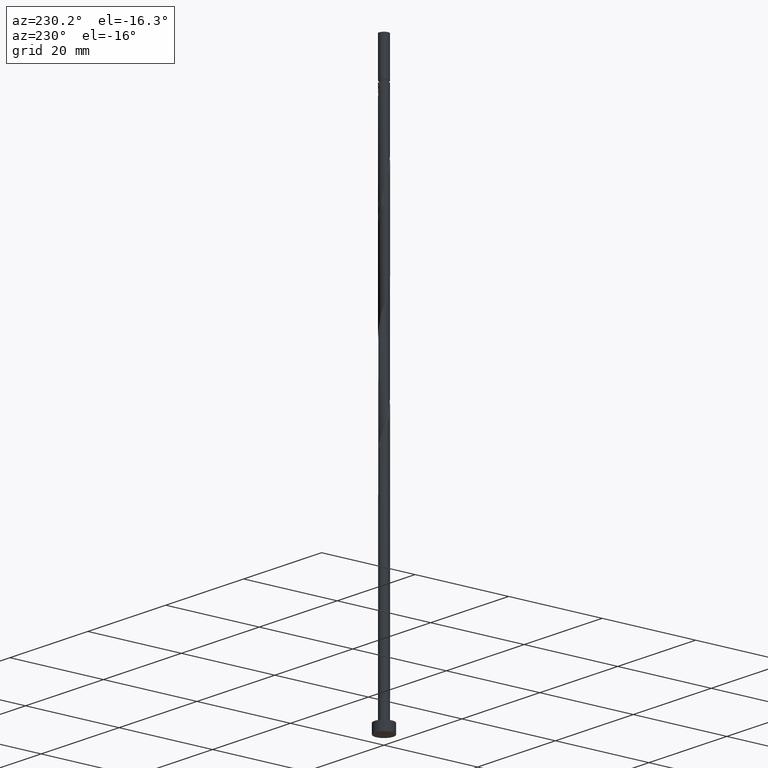
[diagram: clean part render]
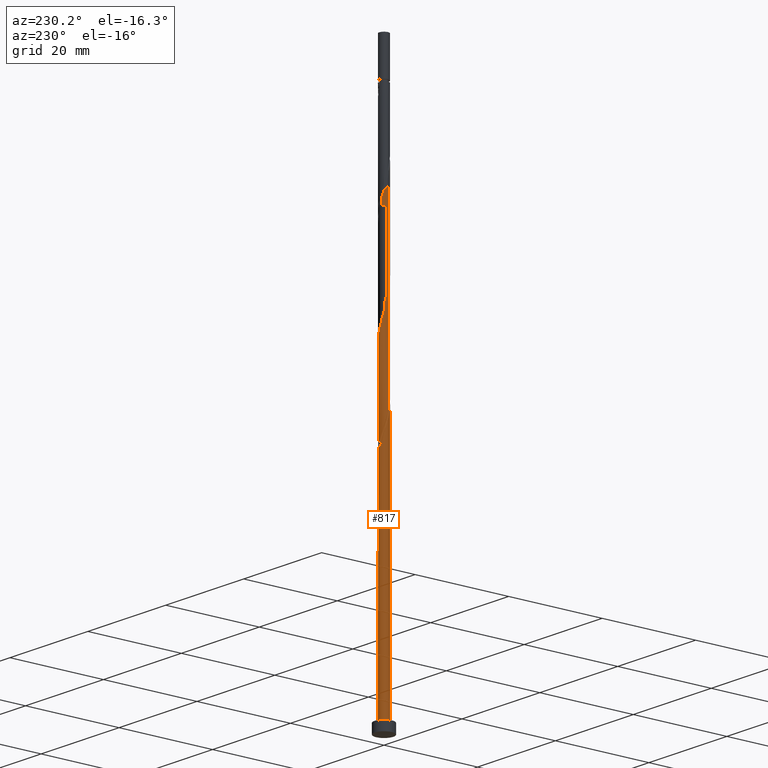
[diagram: same view with one face highlighted and labeled with its STEP entity id]
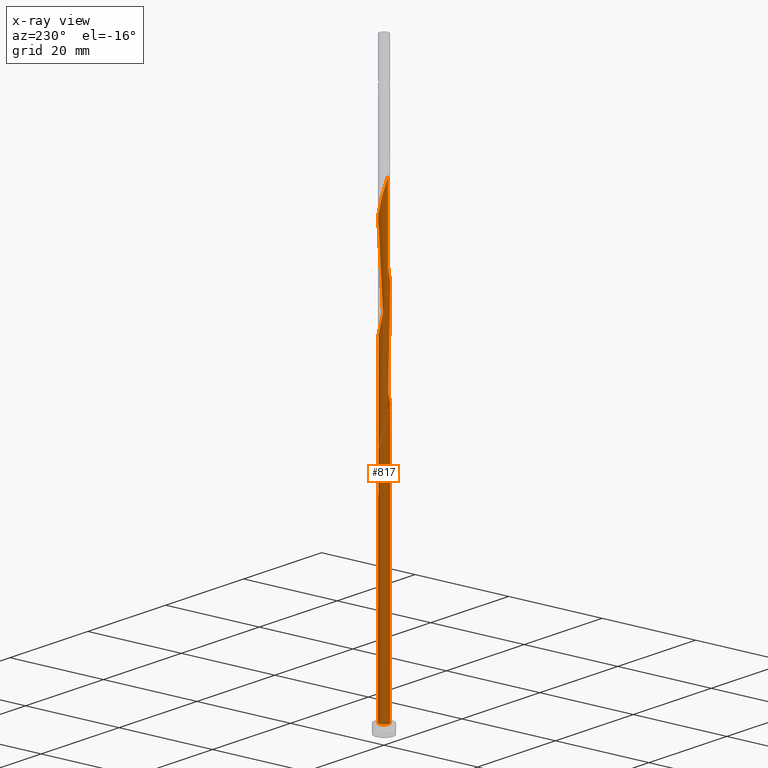
[diagram: x-ray of the same camera — body ghosted, the highlighted face saturated]
A machine part, auxiliary view. The second image highlights one B-rep face of the part: STEP entity #817.
The next image is the same camera in x-ray: the body ghosted, the highlighted face saturated — about 0% of this face is hidden behind the body in this view.
In plain terms, the highlighted cylindrical surface (bore or boss wall) has radius 1 mm, axis along (-0, -0, -1).
Its self-contained STEP definition (entity closure, byte-faithful):
#27 = EDGE_CURVE ( 'NONE', #847, #1115, #245, .T. ) ;
#48 = CARTESIAN_POINT ( 'NONE',  ( -1.000000000000001332, 1.799172333984669435E-16, 95.27018123408876704 ) ) ;
#50 = CARTESIAN_POINT ( 'NONE',  ( -1.000000000000001332, -3.373448126221255745E-16, 53.60351456742210985 ) ) ;
#56 = CYLINDRICAL_SURFACE ( 'NONE', #674, 1.000000000000000000 ) ;
#57 = CARTESIAN_POINT ( 'NONE',  ( 0.04378073590327762749, -1.011518105671216139, 58.95581700889236743 ) ) ;
#63 = CARTESIAN_POINT ( 'NONE',  ( -0.5591360655683673686, -0.8440690085044261215, 56.87248367555902462 ) ) ;
#70 = EDGE_CURVE ( 'NONE', #894, #650, #1370, .T. ) ;
#72 = CARTESIAN_POINT ( 'NONE',  ( -0.9800000000000017586, -0.1989974874213235601, 54.26831700889239585 ) ) ;
#77 = CARTESIAN_POINT ( 'NONE',  ( -0.9755398771694944182, 0.2709383306013503079, 94.37248367555901041 ) ) ;
#91 = CARTESIAN_POINT ( 'NONE',  ( -0.6758688661379389506, -0.7370218964083899982, 77.18498367555908146 ) ) ;
#99 = CARTESIAN_POINT ( 'NONE',  ( -0.4920945116258615970, 0.8705417805181481228, 91.76831700889241006 ) ) ;
#106 = CARTESIAN_POINT ( 'NONE',  ( -0.9935289914203560002, 0.1135787973490363506, 94.89331700889238164 ) ) ;
#109 = ORIENTED_EDGE ( 'NONE', *, *, #27, .T. ) ;
#115 = EDGE_CURVE ( 'NONE', #344, #1096, #1201, .T. ) ;
#118 = DIRECTION ( 'NONE',  ( 0.000000000000000000, 0.000000000000000000, 1.000000000000000000 ) ) ;
#129 = CARTESIAN_POINT ( 'NONE',  ( -0.4150371980848588938, 0.9098044428369604919, 51.14331700889238164 ) ) ;
#155 = CARTESIAN_POINT ( 'NONE',  ( -0.9935289914203560002, 0.1135787973490363506, 53.22665034222571023 ) ) ;
#168 = ORIENTED_EDGE ( 'NONE', *, *, #383, .F. ) ;
#175 = VECTOR ( 'NONE', #367, 1000.000000000000000 ) ;
#190 = CARTESIAN_POINT ( 'NONE',  ( -1.000000000000001776, -0.1005037815259202660, 53.93781914282995160 ) ) ;
#196 = CARTESIAN_POINT ( 'NONE',  ( -1.011518105671216583, -0.04378073590327773157, 74.58081700889235321 ) ) ;
#204 = CARTESIAN_POINT ( 'NONE',  ( 1.011518105671216139, 0.04378073590327757891, 84.99748367555899620 ) ) ;
#211 = CARTESIAN_POINT ( 'NONE',  ( -0.7926016667075098665, -0.6299747843123536528, 76.66415034222571023 ) ) ;
#218 = CARTESIAN_POINT ( 'NONE',  ( -0.04378073590327753728, 1.011518105671216139, 90.20581700889235321 ) ) ;
#224 = CARTESIAN_POINT ( 'NONE',  ( 0.1135787973490365449, 0.9935289914203560002, 68.85165034222572444 ) ) ;
#230 = EDGE_CURVE ( 'NONE', #550, #847, #1291, .T. ) ;
#232 = CARTESIAN_POINT ( 'NONE',  ( 0.000000000000000000, 0.000000000000000000, 2.000000000000000000 ) ) ;
#238 = CARTESIAN_POINT ( 'NONE',  ( 0.1989974874213239209, 0.9800000000000013145, 49.05998367555904593 ) ) ;
#245 = CIRCLE ( 'NONE', #901, 1.000000000000000000 ) ;
#255 = CARTESIAN_POINT ( 'NONE',  ( -1.000000000000001332, -3.373448126221255745E-16, 53.60351456742210985 ) ) ;
#263 = CARTESIAN_POINT ( 'NONE',  ( -0.1135787973490362812, 0.9935289914203555561, 50.10165034222571734 ) ) ;
#270 = CARTESIAN_POINT ( 'NONE',  ( -1.000000000000001332, 0.05697373744643403209, 53.41400347821483052 ) ) ;
#271 = CARTESIAN_POINT ( 'NONE',  ( -1.000000000000000000, 0.000000000000000000, 120.0499999999999972 ) ) ;
#306 = CARTESIAN_POINT ( 'NONE',  ( 0.9800000000000017586, 0.1989974874213234490, 64.68498367555905304 ) ) ;
#313 = CARTESIAN_POINT ( 'NONE',  ( 0.4150371980848592268, 0.9098044428369607139, 88.64331700889238164 ) ) ;
#322 = ORIENTED_EDGE ( 'NONE', *, *, #70, .F. ) ;
#324 = CIRCLE ( 'NONE', #885, 1.000000000000000000 ) ;
#328 = CARTESIAN_POINT ( 'NONE',  ( 0.9935289914203560002, -0.1135787973490364755, 84.47665034222572444 ) ) ;
#331 = ORIENTED_EDGE ( 'NONE', *, *, #660, .F. ) ;
#335 = CARTESIAN_POINT ( 'NONE',  ( 0.8440690085044261215, -0.5591360655683674796, 82.91415034222569602 ) ) ;
#344 = VERTEX_POINT ( 'NONE', #1299 ) ;
#357 = DIRECTION ( 'NONE',  ( 1.000000000000000000, 0.000000000000000000, 0.000000000000000000 ) ) ;
#367 = DIRECTION ( 'NONE',  ( -0.000000000000000000, -0.000000000000000000, -1.000000000000000000 ) ) ;
#374 = CARTESIAN_POINT ( 'NONE',  ( 0.000000000000000000, 0.000000000000000000, 2.000000000000000000 ) ) ;
#383 = EDGE_CURVE ( 'NONE', #550, #894, #388, .T. ) ;
#388 =( BOUNDED_CURVE ( )  B_SPLINE_CURVE ( 2, ( #50, #190, #72, #509, #946, #1173, #1422, #63, #413, #1398, #622, #57, #531, #419, #516, #1408, #406, #526, #1415, #739, #866, #1312, #306, #1161, #610, #1059, #939, #838, #445, #759, #224, #1227, #437, #648, #1319, #976, #1439, #670, #662, #655, #537, #196, #1325, #554, #1452, #211, #91, #1204, #1106, #1428, #1446, #990, #424, #884, #1349, #560, #753, #335, #1334, #983, #328, #204, #1112, #644, #774, #1219, #1095, #1434, #313, #870, #783, #218, #1101, #1120, #99, #999, #891, #1343, #898, #77, #106, #566, #1007 ),
 .UNSPECIFIED., .F., .T. ) 
 B_SPLINE_CURVE_WITH_KNOTS ( ( 3, 2, 2, 2, 2, 2, 2, 2, 2, 2, 2, 2, 2, 2, 2, 2, 2, 2, 2, 2, 2, 2, 2, 2, 2, 2, 2, 2, 2, 2, 2, 2, 2, 2, 2, 2, 2, 2, 2, 2, 2, 3 ),
 ( 0.05453220231385517980, 0.06250000000000000000, 0.07499999999999995559, 0.08750000000000002220, 0.09999999999999997780, 0.1125000000000000444, 0.1250000000000000000, 0.1374999999999999556, 0.1500000000000000222, 0.1624999999999999778, 0.1750000000000000444, 0.1875000000000000000, 0.1999999999999999556, 0.2125000000000000222, 0.2249999999999999778, 0.2375000000000000444, 0.2500000000000000000, 0.2624999999999999556, 0.2750000000000000222, 0.2874999999999999778, 0.3000000000000000444, 0.3125000000000000000, 0.3249999999999999556, 0.3375000000000000222, 0.3499999999999999778, 0.3625000000000000444, 0.3750000000000000000, 0.3874999999999999556, 0.4000000000000000222, 0.4124999999999999778, 0.4250000000000000444, 0.4375000000000000000, 0.4499999999999999556, 0.4625000000000000222, 0.4749999999999999778, 0.4875000000000000444, 0.5000000000000000000, 0.5124999999999999556, 0.5250000000000000222, 0.5374999999999999778, 0.5500000000000000444, 0.5545322023138554712 ),
 .UNSPECIFIED. ) 
 CURVE ( )  GEOMETRIC_REPRESENTATION_ITEM ( )  RATIONAL_B_SPLINE_CURVE ( ( 0.9039174447099485032, 0.9019565955404778013, 0.9090909090909261581, 0.8978984914501424441, 0.9090909090909261581, 0.8978984914501424441, 0.9090909090909261581, 0.8978984914501424441, 0.9090909090909261581, 0.8978984914501424441, 0.9090909090909261581, 0.8978984914501424441, 0.9090909090909261581, 0.8978984914501424441, 0.9090909090909261581, 0.8978984914501424441, 0.9090909090909261581, 0.8978984914501424441, 0.9090909090909261581, 0.8978984914501424441, 0.9090909090909261581, 0.8978984914501424441, 0.9090909090909261581, 0.8978984914501424441, 0.9090909090909261581, 0.8978984914501424441, 0.9090909090909261581, 0.8978984914501424441, 0.9090909090909261581, 0.8978984914501424441, 0.9090909090909261581, 0.8978984914501424441, 0.9090909090909261581, 0.8978984914501424441, 0.9090909090909261581, 0.8978984914501424441, 0.9090909090909261581, 0.8978984914501424441, 0.9090909090909261581, 0.8978984914501424441, 0.9090909090909261581, 0.8978984914501424441, 0.9090909090909261581, 0.8978984914501424441, 0.9090909090909261581, 0.8978984914501424441, 0.9090909090909261581, 0.8978984914501424441, 0.9090909090909261581, 0.8978984914501424441, 0.9090909090909261581, 0.8978984914501424441, 0.9090909090909261581, 0.8978984914501424441, 0.9090909090909261581, 0.8978984914501424441, 0.9090909090909261581, 0.8978984914501424441, 0.9090909090909261581, 0.8978984914501424441, 0.9090909090909261581, 0.8978984914501424441, 0.9090909090909261581, 0.8978984914501424441, 0.9090909090909261581, 0.8978984914501424441, 0.9090909090909261581, 0.8978984914501424441, 0.9090909090909261581, 0.8978984914501424441, 0.9090909090909261581, 0.8978984914501424441, 0.9090909090909261581, 0.8978984914501424441, 0.9090909090909261581, 0.8978984914501424441, 0.9090909090909261581, 0.8978984914501424441, 0.9090909090909261581, 0.8978984914501424441, 0.9090909090909261581, 0.9050328050005903568, 0.9039174447099482812 ) ) 
 REPRESENTATION_ITEM ( '' )  );
#391 = CARTESIAN_POINT ( 'NONE',  ( 0.1989974874213238931, 0.9800000000000013145, 49.05998367555903883 ) ) ;
#406 = CARTESIAN_POINT ( 'NONE',  ( 0.7370218964083899982, -0.6758688661379389506, 61.55998367555906015 ) ) ;
#413 = CARTESIAN_POINT ( 'NONE',  ( -0.4150371980848591158, -0.9098044428369606029, 57.39331700889239585 ) ) ;
#419 = CARTESIAN_POINT ( 'NONE',  ( 0.3542142389393692081, -0.9484818943287861570, 59.99748367555903883 ) ) ;
#424 = CARTESIAN_POINT ( 'NONE',  ( 0.1989974874213235045, -0.9800000000000017586, 80.30998367555903883 ) ) ;
#425 = ORIENTED_EDGE ( 'NONE', *, *, #115, .T. ) ;
#437 = CARTESIAN_POINT ( 'NONE',  ( -0.1989974874213233658, 0.9800000000000017586, 69.89331700889238164 ) ) ;
#439 = ORIENTED_EDGE ( 'NONE', *, *, #707, .F. ) ;
#445 = CARTESIAN_POINT ( 'NONE',  ( 0.4150371980848592268, 0.9098044428369607139, 67.80998367555906725 ) ) ;
#457 = EDGE_LOOP ( 'NONE', ( #322, #168, #618, #109, #1285, #1350, #439, #425, #331 ) ) ;
#461 = CARTESIAN_POINT ( 'NONE',  ( -0.6758688661379386176, 0.7370218964083901092, 52.18498367555905304 ) ) ;
#464 = DIRECTION ( 'NONE',  ( 1.117039367744614283E-28, -1.734723475976834547E-14, -1.000000000000000000 ) ) ;
#495 = CARTESIAN_POINT ( 'NONE',  ( -0.9484818943287859350, 0.3542142389393693747, 53.74748367555904593 ) ) ;
#503 = FACE_OUTER_BOUND ( 'NONE', #457, .T. ) ;
#509 = CARTESIAN_POINT ( 'NONE',  ( -0.9484818943287861570, -0.3542142389393692636, 54.78915034222570313 ) ) ;
#516 = CARTESIAN_POINT ( 'NONE',  ( 0.4920945116258615970, -0.8705417805181484558, 60.51831700889238164 ) ) ;
#526 = CARTESIAN_POINT ( 'NONE',  ( 0.8440690085044261215, -0.5591360655683674796, 62.08081700889237453 ) ) ;
#531 = CARTESIAN_POINT ( 'NONE',  ( 0.1989974874213235045, -0.9800000000000017586, 59.47665034222572444 ) ) ;
#537 = CARTESIAN_POINT ( 'NONE',  ( -0.9935289914203560002, 0.1135787973490363506, 74.05998367555908146 ) ) ;
#544 =( BOUNDED_CURVE ( )  B_SPLINE_CURVE ( 2, ( #579, #1025, #1359, #805, #1248, #692, #585, #1032, #155, #270, #1384 ),
 .UNSPECIFIED., .F., .T. ) 
 B_SPLINE_CURVE_WITH_KNOTS ( ( 3, 2, 2, 2, 2, 3 ),
 ( 0.000000000000000000, 0.01249999999999995559, 0.02500000000000002220, 0.03749999999999997780, 0.05000000000000004441, 0.05453220231385517980 ),
 .UNSPECIFIED. ) 
 CURVE ( )  GEOMETRIC_REPRESENTATION_ITEM ( )  RATIONAL_B_SPLINE_CURVE ( ( 0.9090909090909261581, 0.8978984914501424441, 0.9090909090909261581, 0.8978984914501424441, 0.9090909090909261581, 0.8978984914501424441, 0.9090909090909261581, 0.8978984914501424441, 0.9090909090909261581, 0.9050328050005906899, 0.9039174447099485032 ) ) 
 REPRESENTATION_ITEM ( '' )  );
#550 = VERTEX_POINT ( 'NONE', #255 ) ;
#554 = CARTESIAN_POINT ( 'NONE',  ( -0.9484818943287861570, -0.3542142389393692636, 75.62248367555903883 ) ) ;
#560 = CARTESIAN_POINT ( 'NONE',  ( 0.6299747843123535418, -0.7926016667075098665, 81.87248367555902462 ) ) ;
#566 = CARTESIAN_POINT ( 'NONE',  ( -1.000000000000001776, 0.05697373744643038918, 95.08067014488150903 ) ) ;
#573 = CARTESIAN_POINT ( 'NONE',  ( -0.8705417805181480118, 0.4920945116258615970, 53.22665034222571023 ) ) ;
#579 = CARTESIAN_POINT ( 'NONE',  ( -0.1989974874213234768, 0.9800000000000017586, 49.05998367555903172 ) ) ;
#585 = CARTESIAN_POINT ( 'NONE',  ( -0.9098044428369607139, 0.4150371980848589493, 52.18498367555906725 ) ) ;
#598 = EDGE_CURVE ( 'NONE', #1115, #847, #324, .T. ) ;
#599 = DIRECTION ( 'NONE',  ( 1.000000000000000000, 0.000000000000000000, 0.000000000000000000 ) ) ;
#610 = CARTESIAN_POINT ( 'NONE',  ( 0.8705417805181484558, 0.4920945116258615970, 65.72665034222572444 ) ) ;
#615 = CARTESIAN_POINT ( 'NONE',  ( -1.000000000000000000, 0.000000000000000000, 2.000000000000000000 ) ) ;
#618 = ORIENTED_EDGE ( 'NONE', *, *, #230, .T. ) ;
#621 = CARTESIAN_POINT ( 'NONE',  ( 0.000000000000000000, 0.000000000000000000, 120.0499999999999972 ) ) ;
#622 = CARTESIAN_POINT ( 'NONE',  ( -0.1135787973490363922, -0.9935289914203560002, 58.43498367555905304 ) ) ;
#644 = CARTESIAN_POINT ( 'NONE',  ( 0.9484818943287861570, 0.3542142389393690416, 86.03915034222569602 ) ) ;
#648 = CARTESIAN_POINT ( 'NONE',  ( -0.3542142389393693191, 0.9484818943287860460, 70.41415034222568181 ) ) ;
#650 = VERTEX_POINT ( 'NONE', #1368 ) ;
#655 = CARTESIAN_POINT ( 'NONE',  ( -0.9755398771694944182, 0.2709383306013503079, 73.53915034222568181 ) ) ;
#660 = EDGE_CURVE ( 'NONE', #650, #1096, #1281, .T. ) ;
#662 = CARTESIAN_POINT ( 'NONE',  ( -0.9098044428369607139, 0.4150371980848589493, 73.01831700889239585 ) ) ;
#670 = CARTESIAN_POINT ( 'NONE',  ( -0.8440690085044261215, 0.5591360655683673686, 72.49748367555903883 ) ) ;
#674 = AXIS2_PLACEMENT_3D ( 'NONE', #621, #738, #1282 ) ;
#678 = CARTESIAN_POINT ( 'NONE',  ( -1.000000000000001554, 4.647861862793789565E-16, 54.93311945036264632 ) ) ;
#692 = CARTESIAN_POINT ( 'NONE',  ( -0.8440690085044261215, 0.5591360655683673686, 51.66415034222568892 ) ) ;
#704 = CARTESIAN_POINT ( 'NONE',  ( 0.000000000000000000, 0.000000000000000000, 49.05998367555905304 ) ) ;
#707 = EDGE_CURVE ( 'NONE', #344, #550, #544, .T. ) ;
#738 = DIRECTION ( 'NONE',  ( -0.000000000000000000, -0.000000000000000000, -1.000000000000000000 ) ) ;
#739 = CARTESIAN_POINT ( 'NONE',  ( 0.9755398771694944182, -0.2709383306013504189, 63.12248367555900330 ) ) ;
#740 = VECTOR ( 'NONE', #963, 1000.000000000000000 ) ;
#753 = CARTESIAN_POINT ( 'NONE',  ( 0.7370218964083899982, -0.6758688661379389506, 82.39331700889239585 ) ) ;
#759 = CARTESIAN_POINT ( 'NONE',  ( 0.2709383306013504189, 0.9755398771694944182, 68.33081700889236743 ) ) ;
#774 = CARTESIAN_POINT ( 'NONE',  ( 0.8705417805181484558, 0.4920945116258615970, 86.55998367555906725 ) ) ;
#783 = CARTESIAN_POINT ( 'NONE',  ( 0.1135787973490365449, 0.9935289914203560002, 89.68498367555908146 ) ) ;
#805 = CARTESIAN_POINT ( 'NONE',  ( -0.6299747843123536528, 0.7926016667075098665, 50.62248367555902462 ) ) ;
#817 = ADVANCED_FACE ( 'NONE', ( #503 ), #56, .T. ) ;
#838 = CARTESIAN_POINT ( 'NONE',  ( 0.5591360655683674796, 0.8440690085044261215, 67.28915034222568181 ) ) ;
#847 = VERTEX_POINT ( 'NONE', #615 ) ;
#866 = CARTESIAN_POINT ( 'NONE',  ( 0.9935289914203560002, -0.1135787973490364755, 63.64331700889240295 ) ) ;
#870 = CARTESIAN_POINT ( 'NONE',  ( 0.2709383306013504189, 0.9755398771694944182, 89.16415034222568181 ) ) ;
#884 = CARTESIAN_POINT ( 'NONE',  ( 0.3542142389393692081, -0.9484818943287861570, 80.83081700889235321 ) ) ;
#885 = AXIS2_PLACEMENT_3D ( 'NONE', #232, #1042, #599 ) ;
#891 = CARTESIAN_POINT ( 'NONE',  ( -0.7370218964083903312, 0.6758688661379389506, 92.80998367555906725 ) ) ;
#894 = VERTEX_POINT ( 'NONE', #48 ) ;
#898 = CARTESIAN_POINT ( 'NONE',  ( -0.9098044428369607139, 0.4150371980848589493, 93.85165034222571023 ) ) ;
#901 = AXIS2_PLACEMENT_3D ( 'NONE', #374, #118, #357 ) ;
#905 = CARTESIAN_POINT ( 'NONE',  ( -0.5591360655683673686, 0.8440690085044264546, 51.66415034222570313 ) ) ;
#922 = CARTESIAN_POINT ( 'NONE',  ( -0.9800000000000013145, 0.1989974874213236433, 54.26831700889238164 ) ) ;
#939 = CARTESIAN_POINT ( 'NONE',  ( 0.6758688661379389506, 0.7370218964083899982, 66.76831700889238164 ) ) ;
#946 = CARTESIAN_POINT ( 'NONE',  ( -0.8705417805181484558, -0.4920945116258615970, 55.30998367555904593 ) ) ;
#963 = DIRECTION ( 'NONE',  ( -0.000000000000000000, -0.000000000000000000, -1.000000000000000000 ) ) ;
#976 = CARTESIAN_POINT ( 'NONE',  ( -0.6299747843123536528, 0.7926016667075098665, 71.45581700889236743 ) ) ;
#983 = CARTESIAN_POINT ( 'NONE',  ( 0.9755398771694944182, -0.2709383306013504189, 83.95581700889236743 ) ) ;
#990 = CARTESIAN_POINT ( 'NONE',  ( 0.04378073590327762749, -1.011518105671216139, 79.78915034222568181 ) ) ;
#999 = CARTESIAN_POINT ( 'NONE',  ( -0.6299747843123536528, 0.7926016667075098665, 92.28915034222568181 ) ) ;
#1007 = CARTESIAN_POINT ( 'NONE',  ( -1.000000000000001332, 1.799172333984669681E-16, 95.27018123408876704 ) ) ;
#1016 = CARTESIAN_POINT ( 'NONE',  ( -0.7926016667075100885, 0.6299747843123535418, 52.70581700889237453 ) ) ;
#1025 = CARTESIAN_POINT ( 'NONE',  ( -0.3542142389393693191, 0.9484818943287860460, 49.58081700889236032 ) ) ;
#1032 = CARTESIAN_POINT ( 'NONE',  ( -0.9755398771694944182, 0.2709383306013503079, 52.70581700889236032 ) ) ;
#1042 = DIRECTION ( 'NONE',  ( 0.000000000000000000, 0.000000000000000000, 1.000000000000000000 ) ) ;
#1052 = DIRECTION ( 'NONE',  ( 0.000000000000000000, 1.000000000000000000, -2.081668171172168513E-14 ) ) ;
#1059 = CARTESIAN_POINT ( 'NONE',  ( 0.7926016667075098665, 0.6299747843123535418, 66.24748367555905304 ) ) ;
#1095 = CARTESIAN_POINT ( 'NONE',  ( 0.6758688661379389506, 0.7370218964083899982, 87.60165034222573865 ) ) ;
#1096 = VERTEX_POINT ( 'NONE', #391 ) ;
#1101 = CARTESIAN_POINT ( 'NONE',  ( -0.1989974874213233658, 0.9800000000000017586, 90.72665034222573865 ) ) ;
#1106 = CARTESIAN_POINT ( 'NONE',  ( -0.4150371980848591158, -0.9098044428369606029, 78.22665034222572444 ) ) ;
#1112 = CARTESIAN_POINT ( 'NONE',  ( 0.9800000000000017586, 0.1989974874213234490, 85.51831700889238164 ) ) ;
#1115 = VERTEX_POINT ( 'NONE', #1412 ) ;
#1120 = CARTESIAN_POINT ( 'NONE',  ( -0.3542142389393693191, 0.9484818943287860460, 91.24748367555901041 ) ) ;
#1161 = CARTESIAN_POINT ( 'NONE',  ( 0.9484818943287861570, 0.3542142389393690416, 65.20581700889235321 ) ) ;
#1168 = CARTESIAN_POINT ( 'NONE',  ( -1.000000000000000000, 0.000000000000000000, 120.0499999999999972 ) ) ;
#1173 = CARTESIAN_POINT ( 'NONE',  ( -0.7926016667075098665, -0.6299747843123536528, 55.83081700889236032 ) ) ;
#1201 = CIRCLE ( 'NONE', #1305, 1.000000000000000000 ) ;
#1204 = CARTESIAN_POINT ( 'NONE',  ( -0.5591360655683673686, -0.8440690085044261215, 77.70581700889233900 ) ) ;
#1219 = CARTESIAN_POINT ( 'NONE',  ( 0.7926016667075098665, 0.6299747843123535418, 87.08081700889238164 ) ) ;
#1227 = CARTESIAN_POINT ( 'NONE',  ( -0.04378073590327753728, 1.011518105671216139, 69.37248367555902462 ) ) ;
#1239 = CARTESIAN_POINT ( 'NONE',  ( 0.04378073590327780790, 1.011518105671216805, 49.58081700889238164 ) ) ;
#1248 = CARTESIAN_POINT ( 'NONE',  ( -0.7370218964083903312, 0.6758688661379389506, 51.14331700889238874 ) ) ;
#1256 = CARTESIAN_POINT ( 'NONE',  ( -1.000000000000001110, 0.1005037815259212375, 54.59881487495479035 ) ) ;
#1281 =( BOUNDED_CURVE ( )  B_SPLINE_CURVE ( 2, ( #678, #1256, #922, #495, #573, #1016, #461, #905, #129, #1353, #263, #1239, #238 ),
 .UNSPECIFIED., .F., .T. ) 
 B_SPLINE_CURVE_WITH_KNOTS ( ( 3, 2, 2, 2, 2, 2, 3 ),
 ( 0.9295322023138552492, 0.9375000000000000000, 0.9499999999999999556, 0.9625000000000000222, 0.9749999999999999778, 0.9875000000000000444, 1.000000000000000000 ),
 .UNSPECIFIED. ) 
 CURVE ( )  GEOMETRIC_REPRESENTATION_ITEM ( )  RATIONAL_B_SPLINE_CURVE ( ( 0.9039174447099369569, 0.9019565955404664770, 0.9090909090909147228, 0.8978984914501308978, 0.9090909090909147228, 0.8978984914501308978, 0.9090909090909147228, 0.8978984914501308978, 0.9090909090909147228, 0.8978984914501308978, 0.9090909090909147228, 0.8978984914501308978, 0.9090909090909147228 ) ) 
 REPRESENTATION_ITEM ( '' )  );
#1282 = DIRECTION ( 'NONE',  ( -1.000000000000000000, 0.000000000000000000, 0.000000000000000000 ) ) ;
#1285 = ORIENTED_EDGE ( 'NONE', *, *, #598, .T. ) ;
#1291 = LINE ( 'NONE', #1168, #740 ) ;
#1299 = CARTESIAN_POINT ( 'NONE',  ( -0.1989974874213234768, 0.9800000000000017586, 49.05998367555903883 ) ) ;
#1305 = AXIS2_PLACEMENT_3D ( 'NONE', #704, #464, #1052 ) ;
#1312 = CARTESIAN_POINT ( 'NONE',  ( 1.011518105671216139, 0.04378073590327757891, 64.16415034222569602 ) ) ;
#1319 = CARTESIAN_POINT ( 'NONE',  ( -0.4920945116258615970, 0.8705417805181481228, 70.93498367555905304 ) ) ;
#1325 = CARTESIAN_POINT ( 'NONE',  ( -0.9800000000000017586, -0.1989974874213235601, 75.10165034222572444 ) ) ;
#1334 = CARTESIAN_POINT ( 'NONE',  ( 0.9098044428369606029, -0.4150371980848591158, 83.43498367555905304 ) ) ;
#1343 = CARTESIAN_POINT ( 'NONE',  ( -0.8440690085044261215, 0.5591360655683673686, 93.33081700889236743 ) ) ;
#1349 = CARTESIAN_POINT ( 'NONE',  ( 0.4920945116258615970, -0.8705417805181484558, 81.35165034222573865 ) ) ;
#1350 = ORIENTED_EDGE ( 'NONE', *, *, #230, .F. ) ;
#1353 = CARTESIAN_POINT ( 'NONE',  ( -0.2709383306013502524, 0.9755398771694944182, 50.62248367555905304 ) ) ;
#1359 = CARTESIAN_POINT ( 'NONE',  ( -0.4920945116258615970, 0.8705417805181481228, 50.10165034222571734 ) ) ;
#1368 = CARTESIAN_POINT ( 'NONE',  ( -1.000000000000001554, 4.647861862793789565E-16, 54.93311945036264632 ) ) ;
#1370 = LINE ( 'NONE', #271, #175 ) ;
#1384 = CARTESIAN_POINT ( 'NONE',  ( -1.000000000000001332, -3.373448126221255745E-16, 53.60351456742210985 ) ) ;
#1398 = CARTESIAN_POINT ( 'NONE',  ( -0.2709383306013503079, -0.9755398771694944182, 57.91415034222570313 ) ) ;
#1408 = CARTESIAN_POINT ( 'NONE',  ( 0.6299747843123535418, -0.7926016667075098665, 61.03915034222568181 ) ) ;
#1412 = CARTESIAN_POINT ( 'NONE',  ( 1.000000000000000000, 0.000000000000000000, 2.000000000000000000 ) ) ;
#1415 = CARTESIAN_POINT ( 'NONE',  ( 0.9098044428369606029, -0.4150371980848591158, 62.60165034222573155 ) ) ;
#1422 = CARTESIAN_POINT ( 'NONE',  ( -0.6758688661379389506, -0.7370218964083899982, 56.35165034222571734 ) ) ;
#1428 = CARTESIAN_POINT ( 'NONE',  ( -0.2709383306013503079, -0.9755398771694944182, 78.74748367555902462 ) ) ;
#1434 = CARTESIAN_POINT ( 'NONE',  ( 0.5591360655683674796, 0.8440690085044261215, 88.12248367555901041 ) ) ;
#1439 = CARTESIAN_POINT ( 'NONE',  ( -0.7370218964083903312, 0.6758688661379389506, 71.97665034222575287 ) ) ;
#1446 = CARTESIAN_POINT ( 'NONE',  ( -0.1135787973490363922, -0.9935289914203560002, 79.26831700889241006 ) ) ;
#1452 = CARTESIAN_POINT ( 'NONE',  ( -0.8705417805181484558, -0.4920945116258615970, 76.14331700889241006 ) ) ;